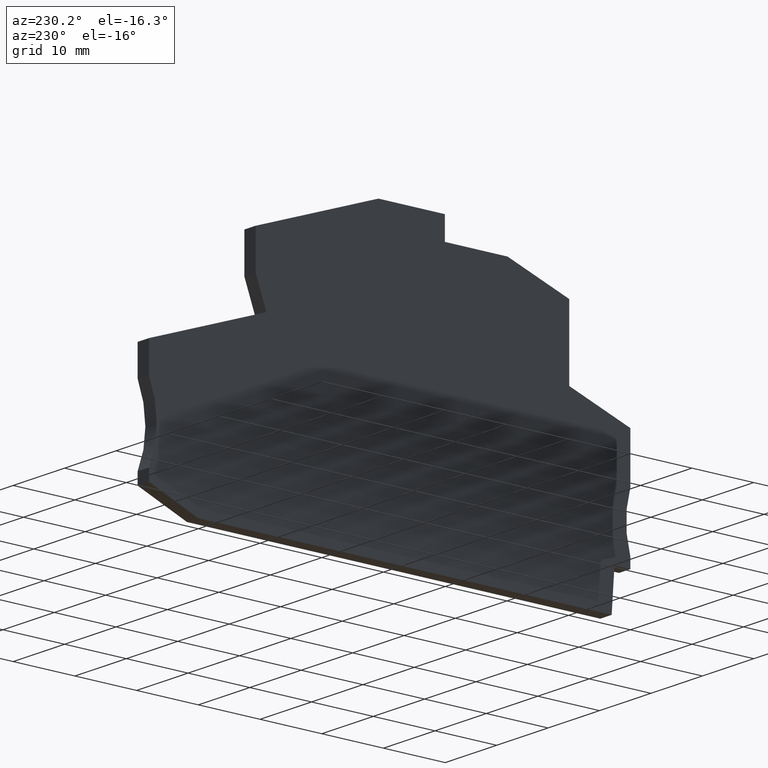
[diagram: clean part render]
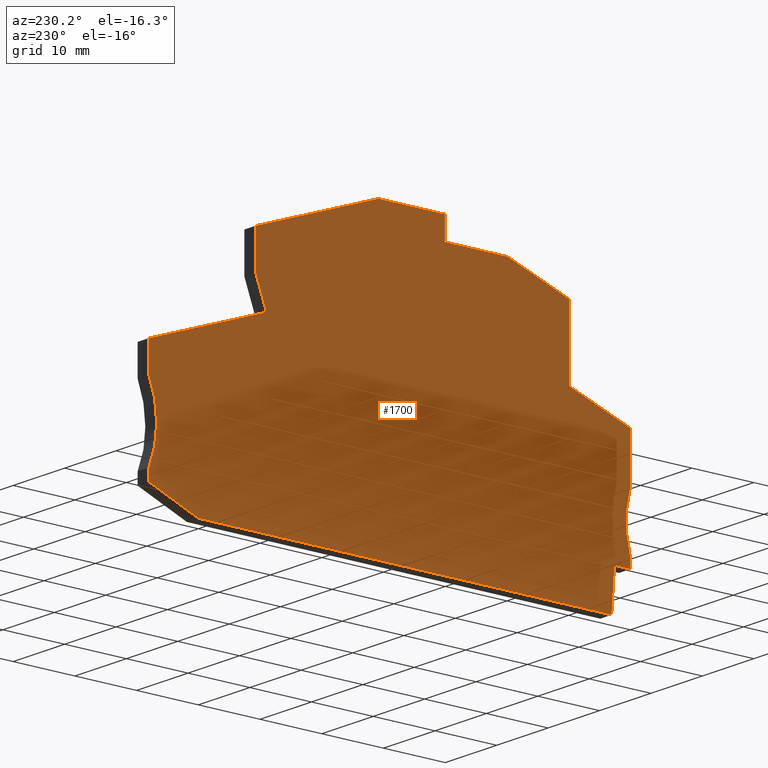
[diagram: same view with one face highlighted and labeled with its STEP entity id]
A machine part, auxiliary view. The second image highlights one B-rep face of the part: STEP entity #1700.
In plain terms, the highlighted planar face has unit normal (-1, -0, 0).
Its self-contained STEP definition (entity closure, byte-faithful):
#10=CARTESIAN_POINT('',(-1.83729707538463,13.6155929972139,
-6.3948846218409E-14));
#20=DIRECTION('',(0.,0.,-1.));
#30=DIRECTION('',(-1.,0.,0.));
#40=AXIS2_PLACEMENT_3D('',#10,#20,#30);
#50=PLANE('',#40);
#60=CARTESIAN_POINT('',(-54.100000000024,22.375712,-6.3948846218409E-14)
);
#70=DIRECTION('',(-8.91857937436628E-13,1.,0.));
#80=VECTOR('',#70,1.);
#90=LINE('',#60,#80);
#100=CARTESIAN_POINT('',(-54.0999999999997,-4.91547575272546,
-6.3948846218409E-14));
#110=VERTEX_POINT('',#100);
#120=CARTESIAN_POINT('',(-54.1000000000011,-3.31547575273037,
-6.3948846218409E-14));
#130=VERTEX_POINT('',#120);
#140=EDGE_CURVE('',#110,#130,#90,.T.);
#150=ORIENTED_EDGE('',*,*,#140,.T.);
#160=CARTESIAN_POINT('',(-12.789958,-4.91547575272546,
-6.3948846218409E-14));
#170=DIRECTION('',(-1.,0.,0.));
#180=VECTOR('',#170,1.);
#190=LINE('',#160,#180);
#200=CARTESIAN_POINT('',(-51.5261083689502,-4.91547575272546,
-6.3948846218409E-14));
#210=VERTEX_POINT('',#200);
#220=EDGE_CURVE('',#210,#110,#190,.T.);
#230=ORIENTED_EDGE('',*,*,#220,.T.);
#240=CARTESIAN_POINT('',(-53.4344941226498,22.375712,
-6.3948846218409E-14));
#250=DIRECTION('',(-0.0697564737441188,0.997564050259825,0.));
#260=VECTOR('',#250,1.);
#270=LINE('',#240,#260);
#280=CARTESIAN_POINT('',(-51.0715840913172,-11.4154757527273,
-6.3948846218409E-14));
#290=VERTEX_POINT('',#280);
#300=EDGE_CURVE('',#290,#210,#270,.T.);
#310=ORIENTED_EDGE('',*,*,#300,.T.);
#320=CARTESIAN_POINT('',(-12.789958,-11.4154757527273,
-6.3948846218409E-14));
#330=DIRECTION('',(-1.,0.,0.));
#340=VECTOR('',#330,1.);
#350=LINE('',#320,#340);
#360=CARTESIAN_POINT('',(15.9050266445918,-11.4154757527273,
-6.3948846218409E-14));
#370=VERTEX_POINT('',#360);
#380=EDGE_CURVE('',#370,#290,#350,.T.);
#390=ORIENTED_EDGE('',*,*,#380,.T.);
#400=CARTESIAN_POINT('',(-12.789958,-22.9755486386901,
-6.3948846218409E-14));
#410=DIRECTION('',(-0.927558981852562,-0.373676779027864,0.));
#420=VECTOR('',#410,1.);
#430=LINE('',#400,#420);
#440=CARTESIAN_POINT('',(23.8999999761354,-8.19461762791234,
-6.3948846218409E-14));
#450=VERTEX_POINT('',#440);
#460=EDGE_CURVE('',#450,#370,#430,.T.);
#470=ORIENTED_EDGE('',*,*,#460,.T.);
#480=CARTESIAN_POINT('',(23.8999999761354,22.375712,-6.3948846218409E-14
));
#490=DIRECTION('',(-6.12323399573676E-17,-1.,0.));
#500=VECTOR('',#490,1.);
#510=LINE('',#480,#500);
#520=CARTESIAN_POINT('',(23.8999999761354,-6.31547574409539,
-6.3948846218409E-14));
#530=VERTEX_POINT('',#520);
#540=EDGE_CURVE('',#530,#450,#510,.T.);
#550=ORIENTED_EDGE('',*,*,#540,.T.);
#560=CARTESIAN_POINT('',(37.6477270610029,-0.315475744095373,
-6.3948846218409E-14));
#570=DIRECTION('',(0.,0.,1.));
#580=DIRECTION('',(1.,0.,0.));
#590=AXIS2_PLACEMENT_3D('',#560,#570,#580);
#600=CIRCLE('',#590,15.);
#610=CARTESIAN_POINT('',(23.8999999614379,5.68452422222856,
-6.3948846218409E-14));
#620=VERTEX_POINT('',#610);
#630=EDGE_CURVE('',#620,#530,#600,.T.);
#640=ORIENTED_EDGE('',*,*,#630,.T.);
#650=CARTESIAN_POINT('',(23.8999999614379,22.375712,-6.3948846218409E-14
));
#660=DIRECTION('',(0.,-1.,0.));
#670=VECTOR('',#660,1.);
#680=LINE('',#650,#670);
#690=CARTESIAN_POINT('',(23.8999999614379,10.4510262039411,
-6.3948846218409E-14));
#700=VERTEX_POINT('',#690);
#710=EDGE_CURVE('',#700,#620,#680,.T.);
#720=ORIENTED_EDGE('',*,*,#710,.T.);
#730=CARTESIAN_POINT('',(-12.789958,23.8050787983884,
-6.3948846218409E-14));
#740=DIRECTION('',(0.939692620785863,-0.342020143325795,0.));
#750=VECTOR('',#740,1.);
#760=LINE('',#730,#750);
#770=CARTESIAN_POINT('',(4.86636729023012,17.3787019462203,
-6.3948846218409E-14));
#780=VERTEX_POINT('',#770);
#790=EDGE_CURVE('',#780,#700,#760,.T.);
#800=ORIENTED_EDGE('',*,*,#790,.T.);
#810=CARTESIAN_POINT('',(6.68513021015243,22.375712,-6.3948846218409E-14
));
#820=DIRECTION('',(-0.342020143328586,-0.939692620784847,0.));
#830=VECTOR('',#820,1.);
#840=LINE('',#810,#830);
#850=CARTESIAN_POINT('',(6.59999996143703,22.1418185639441,
-6.3948846218409E-14));
#860=VERTEX_POINT('',#850);
#870=EDGE_CURVE('',#860,#780,#840,.T.);
#880=ORIENTED_EDGE('',*,*,#870,.T.);
#890=CARTESIAN_POINT('',(6.59999996143703,22.375712,-6.3948846218409E-14
));
#900=DIRECTION('',(0.,-1.,0.));
#910=VECTOR('',#900,1.);
#920=LINE('',#890,#910);
#930=CARTESIAN_POINT('',(6.59999996143703,28.2631896507696,
-6.3948846218409E-14));
#940=VERTEX_POINT('',#930);
#950=EDGE_CURVE('',#940,#860,#920,.T.);
#960=ORIENTED_EDGE('',*,*,#950,.T.);
#970=CARTESIAN_POINT('',(-12.789958,35.3205571924083,
-6.3948846218409E-14));
#980=DIRECTION('',(0.939692620785867,-0.342020143325783,0.));
#990=VECTOR('',#980,1.);
#1000=LINE('',#970,#990);
#1010=CARTESIAN_POINT('',(-13.2829730619506,35.5000000000033,
-6.3948846218409E-14));
#1020=VERTEX_POINT('',#1010);
#1030=EDGE_CURVE('',#1020,#940,#1000,.T.);
#1040=ORIENTED_EDGE('',*,*,#1030,.T.);
#1050=CARTESIAN_POINT('',(-12.789958,35.5000000000033,
-6.3948846218409E-14));
#1060=DIRECTION('',(1.,0.,0.));
#1070=VECTOR('',#1060,1.);
#1080=LINE('',#1050,#1070);
#1090=CARTESIAN_POINT('',(-24.050000038563,35.5000000000033,
-6.3948846218409E-14));
#1100=VERTEX_POINT('',#1090);
#1110=EDGE_CURVE('',#1100,#1020,#1080,.T.);
#1120=ORIENTED_EDGE('',*,*,#1110,.T.);
#1130=CARTESIAN_POINT('',(-24.050000038563,22.375712,
-6.3948846218409E-14));
#1140=DIRECTION('',(0.,1.,0.));
#1150=VECTOR('',#1140,1.);
#1160=LINE('',#1130,#1150);
#1170=CARTESIAN_POINT('',(-24.050000038563,31.9000000000017,
-6.3948846218409E-14));
#1180=VERTEX_POINT('',#1170);
#1190=EDGE_CURVE('',#1180,#1100,#1160,.T.);
#1200=ORIENTED_EDGE('',*,*,#1190,.T.);
#1210=CARTESIAN_POINT('',(-12.789958,31.9000000000017,
-6.3948846218409E-14));
#1220=DIRECTION('',(1.,0.,0.));
#1230=VECTOR('',#1220,1.);
#1240=LINE('',#1210,#1230);
#1250=CARTESIAN_POINT('',(-34.207945725206,31.9000000000017,
-6.3948846218409E-14));
#1260=VERTEX_POINT('',#1250);
#1270=EDGE_CURVE('',#1260,#1180,#1240,.T.);
#1280=ORIENTED_EDGE('',*,*,#1270,.T.);
#1290=CARTESIAN_POINT('',(-12.789958,39.6955100098559,
-6.3948846218409E-14));
#1300=DIRECTION('',(0.939692620785904,0.342020143325682,0.));
#1310=VECTOR('',#1300,1.);
#1320=LINE('',#1290,#1310);
#1330=CARTESIAN_POINT('',(-44.200000038562,28.2631896507687,
-6.3948846218409E-14));
#1340=VERTEX_POINT('',#1330);
#1350=EDGE_CURVE('',#1340,#1260,#1320,.T.);
#1360=ORIENTED_EDGE('',*,*,#1350,.T.);
#1370=CARTESIAN_POINT('',(-44.200000038562,22.375712,
-6.3948846218409E-14));
#1380=DIRECTION('',(0.,1.,0.));
#1390=VECTOR('',#1380,1.);
#1400=LINE('',#1370,#1390);
#1410=CARTESIAN_POINT('',(-44.200000038562,16.9829052625245,
-6.3948846218409E-14));
#1420=VERTEX_POINT('',#1410);
#1430=EDGE_CURVE('',#1420,#1340,#1400,.T.);
#1440=ORIENTED_EDGE('',*,*,#1430,.T.);
#1450=CARTESIAN_POINT('',(-12.789958,28.4152256216117,
-6.3948846218409E-14));
#1460=DIRECTION('',(0.939692620785904,0.342020143325682,0.));
#1470=VECTOR('',#1460,1.);
#1480=LINE('',#1450,#1470);
#1490=CARTESIAN_POINT('',(-54.1,13.3795999573244,-6.3948846218409E-14));
#1500=VERTEX_POINT('',#1490);
#1510=EDGE_CURVE('',#1500,#1420,#1480,.T.);
#1520=ORIENTED_EDGE('',*,*,#1510,.T.);
#1530=CARTESIAN_POINT('',(-54.1,22.375712,-6.3948846218409E-14));
#1540=DIRECTION('',(0.,1.,0.));
#1550=VECTOR('',#1540,1.);
#1560=LINE('',#1530,#1550);
#1570=CARTESIAN_POINT('',(-54.1,5.68452424726971,-6.3948846218409E-14));
#1580=VERTEX_POINT('',#1570);
#1590=EDGE_CURVE('',#1580,#1500,#1560,.T.);
#1600=ORIENTED_EDGE('',*,*,#1590,.T.);
#1610=CARTESIAN_POINT('',(-68.4090880212549,1.18452424727143,
-6.3948846218409E-14));
#1620=DIRECTION('',(0.,0.,1.));
#1630=DIRECTION('',(1.,0.,0.));
#1640=AXIS2_PLACEMENT_3D('',#1610,#1620,#1630);
#1650=CIRCLE('',#1640,15.0000000000001);
#1660=EDGE_CURVE('',#130,#1580,#1650,.T.);
#1670=ORIENTED_EDGE('',*,*,#1660,.T.);
#1680=EDGE_LOOP('',(#1670,#1600,#1520,#1440,#1360,#1280,#1200,#1120,
#1040,#960,#880,#800,#720,#640,#550,#470,#390,#310,#230,#150));
#1690=FACE_OUTER_BOUND('',#1680,.T.);
#1700=ADVANCED_FACE('',(#1690),#50,.T.);